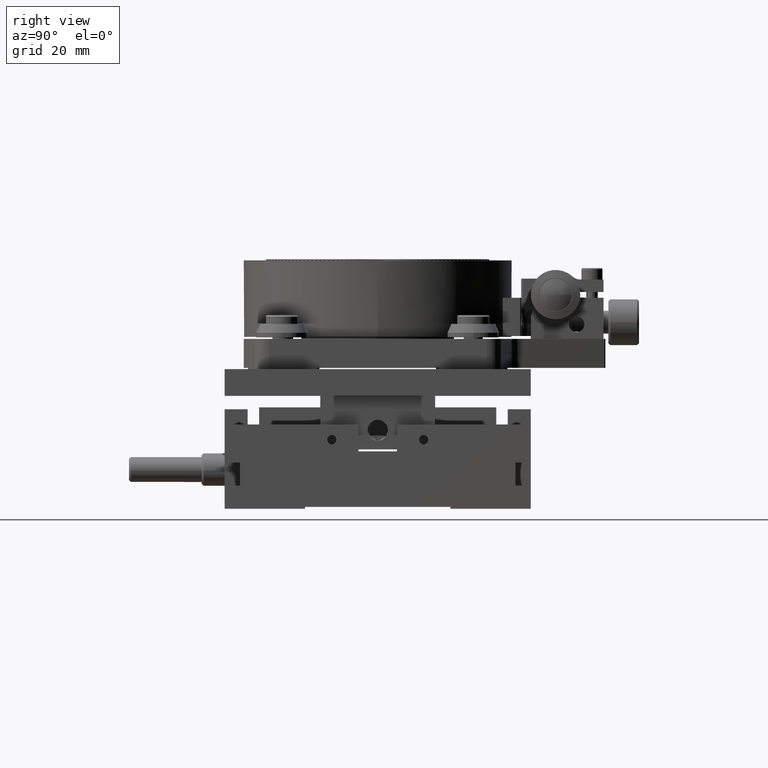
[diagram: clean part render]
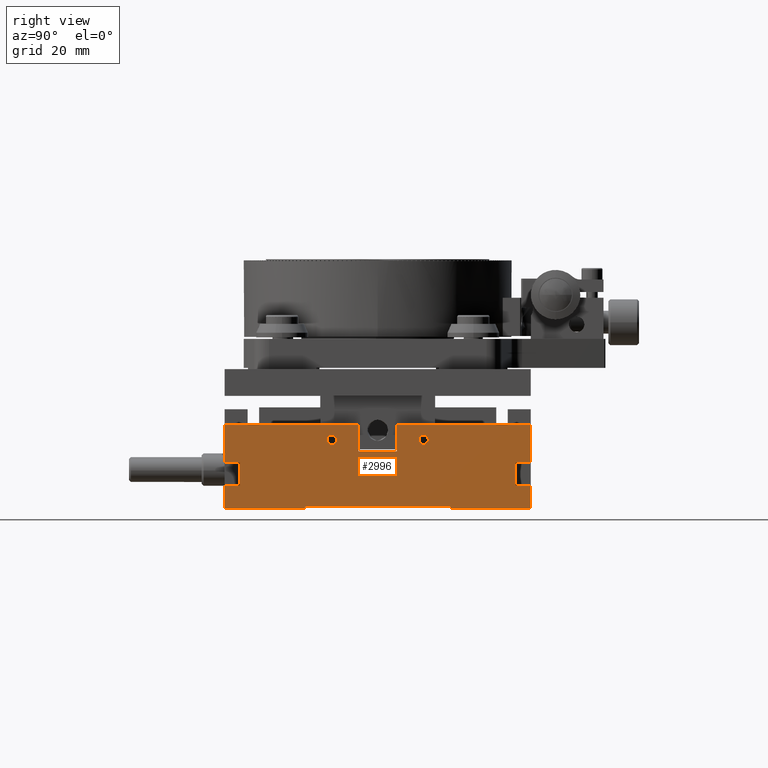
[diagram: same view with one face highlighted and labeled with its STEP entity id]
A machine part, right view. The second image highlights one B-rep face of the part: STEP entity #2996.
In plain terms, the highlighted face is a freeform B-spline surface patch.
Its self-contained STEP definition (entity closure, byte-faithful):
#2996=ADVANCED_FACE('',(#6193,#3608,#3609),#103566,.T.);
#3608=FACE_BOUND('',#9306,.T.);
#3609=FACE_BOUND('',#9307,.T.);
#6193=FACE_OUTER_BOUND('',#9305,.T.);
#9305=EDGE_LOOP('',(#23566,#23567,#23568,#23569,#23570,#23571,#23572,#23573,
#23574,#23575,#23576,#23577,#23578,#23579,#23580,#23581,#23582,#23583,#23584,
#23585));
#9306=EDGE_LOOP('',(#23586,#23587,#23588));
#9307=EDGE_LOOP('',(#23589,#23590,#23591));
#23566=ORIENTED_EDGE('',*,*,#91072,.F.);
#23567=ORIENTED_EDGE('',*,*,#91147,.F.);
#23568=ORIENTED_EDGE('',*,*,#91229,.F.);
#23569=ORIENTED_EDGE('',*,*,#91218,.F.);
#23570=ORIENTED_EDGE('',*,*,#91230,.T.);
#23571=ORIENTED_EDGE('',*,*,#91216,.F.);
#23572=ORIENTED_EDGE('',*,*,#91228,.F.);
#23573=ORIENTED_EDGE('',*,*,#91231,.T.);
#23574=ORIENTED_EDGE('',*,*,#91232,.T.);
#23575=ORIENTED_EDGE('',*,*,#91233,.T.);
#23576=ORIENTED_EDGE('',*,*,#91234,.T.);
#23577=ORIENTED_EDGE('',*,*,#91235,.T.);
#23578=ORIENTED_EDGE('',*,*,#91236,.T.);
#23579=ORIENTED_EDGE('',*,*,#91237,.T.);
#23580=ORIENTED_EDGE('',*,*,#91238,.T.);
#23581=ORIENTED_EDGE('',*,*,#91239,.T.);
#23582=ORIENTED_EDGE('',*,*,#91240,.T.);
#23583=ORIENTED_EDGE('',*,*,#91140,.F.);
#23584=ORIENTED_EDGE('',*,*,#91073,.F.);
#23585=ORIENTED_EDGE('',*,*,#91010,.F.);
#23586=ORIENTED_EDGE('',*,*,#90863,.F.);
#23587=ORIENTED_EDGE('',*,*,#90866,.F.);
#23588=ORIENTED_EDGE('',*,*,#90870,.F.);
#23589=ORIENTED_EDGE('',*,*,#90881,.F.);
#23590=ORIENTED_EDGE('',*,*,#90884,.F.);
#23591=ORIENTED_EDGE('',*,*,#90888,.F.);
#42529=B_SPLINE_CURVE_WITH_KNOTS('',1,(#184313,#184314),.UNSPECIFIED.,.F.,
 .F.,(2,2),(-1.93129408379433,0.),.UNSPECIFIED.);
#42534=B_SPLINE_CURVE_WITH_KNOTS('',1,(#184336,#184337),.UNSPECIFIED.,.F.,
 .F.,(2,2),(-3.86258816758865,-1.93129408379433),.UNSPECIFIED.);
#42543=B_SPLINE_CURVE_WITH_KNOTS('',1,(#184389,#184390),.UNSPECIFIED.,.F.,
 .F.,(2,2),(-3.86258816758865,0.),.UNSPECIFIED.);
#42563=B_SPLINE_CURVE_WITH_KNOTS('',1,(#184483,#184484),.UNSPECIFIED.,.F.,
 .F.,(2,2),(-1.93129408379433,0.),.UNSPECIFIED.);
#42568=B_SPLINE_CURVE_WITH_KNOTS('',1,(#184506,#184507),.UNSPECIFIED.,.F.,
 .F.,(2,2),(-3.86258816758865,-1.93129408379433),.UNSPECIFIED.);
#42577=B_SPLINE_CURVE_WITH_KNOTS('',1,(#184559,#184560),.UNSPECIFIED.,.F.,
 .F.,(2,2),(-3.86258816758865,0.),.UNSPECIFIED.);
#42801=B_SPLINE_CURVE_WITH_KNOTS('',1,(#185604,#185605),.UNSPECIFIED.,.F.,
 .F.,(2,2),(-38.,0.),.UNSPECIFIED.);
#42802=B_SPLINE_CURVE_WITH_KNOTS('',1,(#185606,#185607),.UNSPECIFIED.,.F.,
 .F.,(2,2),(-38.,0.),.UNSPECIFIED.);
#42881=B_SPLINE_CURVE_WITH_KNOTS('',1,(#185992,#185993),.UNSPECIFIED.,.F.,
 .F.,(2,2),(-0.500000000000011,0.),.UNSPECIFIED.);
#42882=B_SPLINE_CURVE_WITH_KNOTS('',1,(#185994,#185995),.UNSPECIFIED.,.F.,
 .F.,(2,2),(-0.500000000000011,0.),.UNSPECIFIED.);
#42884=B_SPLINE_CURVE_WITH_KNOTS('',1,(#185998,#185999),.UNSPECIFIED.,.F.,
 .F.,(2,2),(-0.500000000000011,0.),.UNSPECIFIED.);
#42885=B_SPLINE_CURVE_WITH_KNOTS('',1,(#186000,#186001),.UNSPECIFIED.,.F.,
 .F.,(2,2),(-0.500000000000011,0.),.UNSPECIFIED.);
#43050=B_SPLINE_CURVE_WITH_KNOTS('',1,(#186387,#186388),.UNSPECIFIED.,.F.,
 .F.,(2,2),(-20.9999999999999,0.),.UNSPECIFIED.);
#43051=B_SPLINE_CURVE_WITH_KNOTS('',1,(#186389,#186390),.UNSPECIFIED.,.F.,
 .F.,(2,2),(-20.9999999999999,0.),.UNSPECIFIED.);
#43062=B_SPLINE_CURVE_WITH_KNOTS('',1,(#186431,#186432),.UNSPECIFIED.,.F.,
 .F.,(2,2),(-21.,0.),.UNSPECIFIED.);
#43063=B_SPLINE_CURVE_WITH_KNOTS('',1,(#186433,#186434),.UNSPECIFIED.,.F.,
 .F.,(2,2),(-21.,0.),.UNSPECIFIED.);
#43219=B_SPLINE_CURVE_WITH_KNOTS('',1,(#187012,#187013),.UNSPECIFIED.,.F.,
 .F.,(2,2),(-4.,0.),.UNSPECIFIED.);
#43220=B_SPLINE_CURVE_WITH_KNOTS('',1,(#187014,#187015),.UNSPECIFIED.,.F.,
 .F.,(2,2),(-4.,0.),.UNSPECIFIED.);
#43223=B_SPLINE_CURVE_WITH_KNOTS('',1,(#187020,#187021),.UNSPECIFIED.,.F.,
 .F.,(2,2),(-4.,0.),.UNSPECIFIED.);
#43224=B_SPLINE_CURVE_WITH_KNOTS('',1,(#187022,#187023),.UNSPECIFIED.,.F.,
 .F.,(2,2),(-4.,0.),.UNSPECIFIED.);
#43248=B_SPLINE_CURVE_WITH_KNOTS('',1,(#187070,#187071),.UNSPECIFIED.,.F.,
 .F.,(2,2),(0.,10.),.UNSPECIFIED.);
#43249=B_SPLINE_CURVE_WITH_KNOTS('',1,(#187072,#187073),.UNSPECIFIED.,.F.,
 .F.,(2,2),(0.,10.),.UNSPECIFIED.);
#43253=B_SPLINE_CURVE_WITH_KNOTS('',1,(#187090,#187091),.UNSPECIFIED.,.F.,
 .F.,(2,2),(0.,5.99999999999999),.UNSPECIFIED.);
#43254=B_SPLINE_CURVE_WITH_KNOTS('',1,(#187092,#187093),.UNSPECIFIED.,.F.,
 .F.,(2,2),(0.,5.99999999999999),.UNSPECIFIED.);
#43257=B_SPLINE_CURVE_WITH_KNOTS('',1,(#187098,#187099),.UNSPECIFIED.,.F.,
 .F.,(2,2),(-0.500000000000011,0.),.UNSPECIFIED.);
#43258=B_SPLINE_CURVE_WITH_KNOTS('',1,(#187100,#187101),.UNSPECIFIED.,.F.,
 .F.,(2,2),(-21.,0.),.UNSPECIFIED.);
#43259=B_SPLINE_CURVE_WITH_KNOTS('',1,(#187102,#187103),.UNSPECIFIED.,.F.,
 .F.,(2,2),(0.,5.99999999999999),.UNSPECIFIED.);
#43260=B_SPLINE_CURVE_WITH_KNOTS('',1,(#187104,#187105),.UNSPECIFIED.,.F.,
 .F.,(2,2),(-4.,0.),.UNSPECIFIED.);
#43261=B_SPLINE_CURVE_WITH_KNOTS('',1,(#187106,#187107),.UNSPECIFIED.,.F.,
 .F.,(2,2),(0.,6.00000000000003),.UNSPECIFIED.);
#43262=B_SPLINE_CURVE_WITH_KNOTS('',1,(#187108,#187109),.UNSPECIFIED.,.F.,
 .F.,(2,2),(0.,6.00000000000003),.UNSPECIFIED.);
#43263=B_SPLINE_CURVE_WITH_KNOTS('',1,(#187110,#187111),.UNSPECIFIED.,.F.,
 .F.,(2,2),(-4.,0.),.UNSPECIFIED.);
#43264=B_SPLINE_CURVE_WITH_KNOTS('',1,(#187112,#187113),.UNSPECIFIED.,.F.,
 .F.,(2,2),(0.,10.),.UNSPECIFIED.);
#43265=B_SPLINE_CURVE_WITH_KNOTS('',1,(#187114,#187115),.UNSPECIFIED.,.F.,
 .F.,(2,2),(-35.,0.),.UNSPECIFIED.);
#43266=B_SPLINE_CURVE_WITH_KNOTS('',1,(#187116,#187117),.UNSPECIFIED.,.F.,
 .F.,(2,2),(-35.,0.),.UNSPECIFIED.);
#43267=B_SPLINE_CURVE_WITH_KNOTS('',1,(#187118,#187119),.UNSPECIFIED.,.F.,
 .F.,(2,2),(0.,7.),.UNSPECIFIED.);
#43268=B_SPLINE_CURVE_WITH_KNOTS('',1,(#187120,#187121),.UNSPECIFIED.,.F.,
 .F.,(2,2),(0.,7.),.UNSPECIFIED.);
#43269=B_SPLINE_CURVE_WITH_KNOTS('',1,(#187122,#187123),.UNSPECIFIED.,.F.,
 .F.,(2,2),(0.,10.),.UNSPECIFIED.);
#43270=B_SPLINE_CURVE_WITH_KNOTS('',1,(#187124,#187125),.UNSPECIFIED.,.F.,
 .F.,(2,2),(0.,10.),.UNSPECIFIED.);
#43271=B_SPLINE_CURVE_WITH_KNOTS('',1,(#187126,#187127),.UNSPECIFIED.,.F.,
 .F.,(2,2),(0.,7.),.UNSPECIFIED.);
#43272=B_SPLINE_CURVE_WITH_KNOTS('',1,(#187128,#187129),.UNSPECIFIED.,.F.,
 .F.,(2,2),(0.,7.),.UNSPECIFIED.);
#43273=B_SPLINE_CURVE_WITH_KNOTS('',1,(#187130,#187131),.UNSPECIFIED.,.F.,
 .F.,(2,2),(-34.9999999999999,0.),.UNSPECIFIED.);
#43274=B_SPLINE_CURVE_WITH_KNOTS('',1,(#187132,#187133),.UNSPECIFIED.,.F.,
 .F.,(2,2),(-34.9999999999999,0.),.UNSPECIFIED.);
#43275=B_SPLINE_CURVE_WITH_KNOTS('',1,(#187134,#187135),.UNSPECIFIED.,.F.,
 .F.,(2,2),(0.,10.),.UNSPECIFIED.);
#43276=B_SPLINE_CURVE_WITH_KNOTS('',1,(#187136,#187137),.UNSPECIFIED.,.F.,
 .F.,(2,2),(0.,10.),.UNSPECIFIED.);
#43277=B_SPLINE_CURVE_WITH_KNOTS('',1,(#187138,#187139),.UNSPECIFIED.,.F.,
 .F.,(2,2),(0.,3.9999999999999),.UNSPECIFIED.);
#43278=B_SPLINE_CURVE_WITH_KNOTS('',1,(#187140,#187141),.UNSPECIFIED.,.F.,
 .F.,(2,2),(0.,3.9999999999999),.UNSPECIFIED.);
#43279=B_SPLINE_CURVE_WITH_KNOTS('',1,(#187142,#187143),.UNSPECIFIED.,.F.,
 .F.,(2,2),(0.,6.00000000000002),.UNSPECIFIED.);
#43280=B_SPLINE_CURVE_WITH_KNOTS('',1,(#187144,#187145),.UNSPECIFIED.,.F.,
 .F.,(2,2),(0.,6.00000000000002),.UNSPECIFIED.);
#43281=B_SPLINE_CURVE_WITH_KNOTS('',1,(#187146,#187147),.UNSPECIFIED.,.F.,
 .F.,(2,2),(0.,3.9999999999999),.UNSPECIFIED.);
#43282=B_SPLINE_CURVE_WITH_KNOTS('',1,(#187148,#187149),.UNSPECIFIED.,.F.,
 .F.,(2,2),(0.,3.9999999999999),.UNSPECIFIED.);
#43283=B_SPLINE_CURVE_WITH_KNOTS('',1,(#187150,#187151),.UNSPECIFIED.,.F.,
 .F.,(2,2),(0.,6.),.UNSPECIFIED.);
#43284=B_SPLINE_CURVE_WITH_KNOTS('',1,(#187152,#187153),.UNSPECIFIED.,.F.,
 .F.,(2,2),(0.,6.),.UNSPECIFIED.);
#43285=B_SPLINE_CURVE_WITH_KNOTS('',1,(#187154,#187155),.UNSPECIFIED.,.F.,
 .F.,(2,2),(-20.9999999999999,0.),.UNSPECIFIED.);
#43286=B_SPLINE_CURVE_WITH_KNOTS('',1,(#187156,#187157),.UNSPECIFIED.,.F.,
 .F.,(2,2),(-0.500000000000011,0.),.UNSPECIFIED.);
#43287=B_SPLINE_CURVE_WITH_KNOTS('',1,(#187158,#187159),.UNSPECIFIED.,.F.,
 .F.,(2,2),(-38.,0.),.UNSPECIFIED.);
#43288=B_SPLINE_CURVE_WITH_KNOTS('',1,(#187182,#187183),.UNSPECIFIED.,.F.,
 .F.,(2,2),(0.,3.9999999999999),.UNSPECIFIED.);
#43299=B_SPLINE_CURVE_WITH_KNOTS('',1,(#187204,#187205),.UNSPECIFIED.,.F.,
 .F.,(2,2),(0.,3.9999999999999),.UNSPECIFIED.);
#43303=B_SPLINE_CURVE_WITH_KNOTS('',1,(#187212,#187213),.UNSPECIFIED.,.F.,
 .F.,(2,2),(0.,10.),.UNSPECIFIED.);
#43312=B_SPLINE_CURVE_WITH_KNOTS('',1,(#187230,#187231),.UNSPECIFIED.,.F.,
 .F.,(2,2),(0.,6.),.UNSPECIFIED.);
#43366=B_SPLINE_CURVE_WITH_KNOTS('',1,(#187513,#187514),.UNSPECIFIED.,.F.,
 .F.,(2,2),(0.,7.),.UNSPECIFIED.);
#43373=B_SPLINE_CURVE_WITH_KNOTS('',1,(#187527,#187528),.UNSPECIFIED.,.F.,
 .F.,(2,2),(0.,7.),.UNSPECIFIED.);
#43381=B_SPLINE_CURVE_WITH_KNOTS('',1,(#187543,#187544),.UNSPECIFIED.,.F.,
 .F.,(2,2),(0.,10.),.UNSPECIFIED.);
#43400=B_SPLINE_CURVE_WITH_KNOTS('',1,(#187593,#187594),.UNSPECIFIED.,.F.,
 .F.,(2,2),(-34.9999999999999,0.),.UNSPECIFIED.);
#43402=B_SPLINE_CURVE_WITH_KNOTS('',1,(#187637,#187638),.UNSPECIFIED.,.F.,
 .F.,(2,2),(-35.,0.),.UNSPECIFIED.);
#44182=B_SPLINE_CURVE_WITH_KNOTS('',1,(#190474,#190475),.UNSPECIFIED.,.F.,
 .F.,(2,2),(0.,6.00000000000002),.UNSPECIFIED.);
#44194=B_SPLINE_CURVE_WITH_KNOTS('',1,(#190498,#190499),.UNSPECIFIED.,.F.,
 .F.,(2,2),(0.,6.00000000000003),.UNSPECIFIED.);
#58430=PCURVE('',#101427,#74023);
#58433=PCURVE('',#101428,#74026);
#58439=PCURVE('',#101428,#74032);
#58452=PCURVE('',#101431,#74045);
#58455=PCURVE('',#101432,#74048);
#58461=PCURVE('',#101432,#74054);
#58601=PCURVE('',#103512,#74194);
#58671=PCURVE('',#103518,#74264);
#58673=PCURVE('',#103519,#74266);
#58785=PCURVE('',#103535,#74378);
#58794=PCURVE('',#103536,#74387);
#58945=PCURVE('',#103560,#74538);
#58947=PCURVE('',#103561,#74540);
#58962=PCURVE('',#103564,#74555);
#58968=PCURVE('',#103565,#74561);
#58971=PCURVE('',#103566,#74564);
#58972=PCURVE('',#103566,#74565);
#58973=PCURVE('',#103566,#74566);
#58974=PCURVE('',#103566,#74567);
#58975=PCURVE('',#103566,#74568);
#58976=PCURVE('',#103566,#74569);
#58977=PCURVE('',#103566,#74570);
#58978=PCURVE('',#103566,#74571);
#58979=PCURVE('',#103566,#74572);
#58980=PCURVE('',#103566,#74573);
#58981=PCURVE('',#103566,#74574);
#58982=PCURVE('',#103566,#74575);
#58983=PCURVE('',#103566,#74576);
#58984=PCURVE('',#103566,#74577);
#58985=PCURVE('',#103566,#74578);
#58986=PCURVE('',#103566,#74579);
#58987=PCURVE('',#103566,#74580);
#58988=PCURVE('',#103566,#74581);
#58989=PCURVE('',#103566,#74582);
#58990=PCURVE('',#103566,#74583);
#58991=PCURVE('',#103566,#74584);
#58992=PCURVE('',#103566,#74585);
#58993=PCURVE('',#103566,#74586);
#58994=PCURVE('',#103566,#74587);
#58995=PCURVE('',#103566,#74588);
#58996=PCURVE('',#103566,#74589);
#58997=PCURVE('',#103567,#74590);
#59003=PCURVE('',#103568,#74596);
#59006=PCURVE('',#103569,#74599);
#59012=PCURVE('',#103570,#74605);
#59068=PCURVE('',#103588,#74661);
#59072=PCURVE('',#103589,#74665);
#59077=PCURVE('',#103590,#74670);
#59092=PCURVE('',#103591,#74685);
#59098=PCURVE('',#103592,#74691);
#59803=PCURVE('',#103634,#75396);
#59814=PCURVE('',#103635,#75407);
#74023=DEFINITIONAL_REPRESENTATION('',(#42529),#197026);
#74026=DEFINITIONAL_REPRESENTATION('',(#42534),#197026);
#74032=DEFINITIONAL_REPRESENTATION('',(#42543),#197026);
#74045=DEFINITIONAL_REPRESENTATION('',(#42563),#197026);
#74048=DEFINITIONAL_REPRESENTATION('',(#42568),#197026);
#74054=DEFINITIONAL_REPRESENTATION('',(#42577),#197026);
#74194=DEFINITIONAL_REPRESENTATION('',(#42802),#197026);
#74264=DEFINITIONAL_REPRESENTATION('',(#42882),#197026);
#74266=DEFINITIONAL_REPRESENTATION('',(#42885),#197026);
#74378=DEFINITIONAL_REPRESENTATION('',(#43051),#197026);
#74387=DEFINITIONAL_REPRESENTATION('',(#43063),#197026);
#74538=DEFINITIONAL_REPRESENTATION('',(#43220),#197026);
#74540=DEFINITIONAL_REPRESENTATION('',(#43224),#197026);
#74555=DEFINITIONAL_REPRESENTATION('',(#43249),#197026);
#74561=DEFINITIONAL_REPRESENTATION('',(#43254),#197026);
#74564=DEFINITIONAL_REPRESENTATION('',(#43257),#197026);
#74565=DEFINITIONAL_REPRESENTATION('',(#43258),#197026);
#74566=DEFINITIONAL_REPRESENTATION('',(#43259),#197026);
#74567=DEFINITIONAL_REPRESENTATION('',(#43260),#197026);
#74568=DEFINITIONAL_REPRESENTATION('',(#43262),#197026);
#74569=DEFINITIONAL_REPRESENTATION('',(#43263),#197026);
#74570=DEFINITIONAL_REPRESENTATION('',(#43264),#197026);
#74571=DEFINITIONAL_REPRESENTATION('',(#43266),#197026);
#74572=DEFINITIONAL_REPRESENTATION('',(#43268),#197026);
#74573=DEFINITIONAL_REPRESENTATION('',(#43270),#197026);
#74574=DEFINITIONAL_REPRESENTATION('',(#43272),#197026);
#74575=DEFINITIONAL_REPRESENTATION('',(#43274),#197026);
#74576=DEFINITIONAL_REPRESENTATION('',(#43276),#197026);
#74577=DEFINITIONAL_REPRESENTATION('',(#43278),#197026);
#74578=DEFINITIONAL_REPRESENTATION('',(#43280),#197026);
#74579=DEFINITIONAL_REPRESENTATION('',(#43282),#197026);
#74580=DEFINITIONAL_REPRESENTATION('',(#43284),#197026);
#74581=DEFINITIONAL_REPRESENTATION('',(#43285),#197026);
#74582=DEFINITIONAL_REPRESENTATION('',(#43286),#197026);
#74583=DEFINITIONAL_REPRESENTATION('',(#43287),#197026);
#74584=DEFINITIONAL_REPRESENTATION('',(#94990),#197026);
#74585=DEFINITIONAL_REPRESENTATION('',(#94991),#197026);
#74586=DEFINITIONAL_REPRESENTATION('',(#94992),#197026);
#74587=DEFINITIONAL_REPRESENTATION('',(#94993),#197026);
#74588=DEFINITIONAL_REPRESENTATION('',(#94994),#197026);
#74589=DEFINITIONAL_REPRESENTATION('',(#94995),#197026);
#74590=DEFINITIONAL_REPRESENTATION('',(#43288),#197026);
#74596=DEFINITIONAL_REPRESENTATION('',(#43299),#197026);
#74599=DEFINITIONAL_REPRESENTATION('',(#43303),#197026);
#74605=DEFINITIONAL_REPRESENTATION('',(#43312),#197026);
#74661=DEFINITIONAL_REPRESENTATION('',(#43366),#197026);
#74665=DEFINITIONAL_REPRESENTATION('',(#43373),#197026);
#74670=DEFINITIONAL_REPRESENTATION('',(#43381),#197026);
#74685=DEFINITIONAL_REPRESENTATION('',(#43400),#197026);
#74691=DEFINITIONAL_REPRESENTATION('',(#43402),#197026);
#75396=DEFINITIONAL_REPRESENTATION('',(#44182),#197026);
#75407=DEFINITIONAL_REPRESENTATION('',(#44194),#197026);
#83005=SURFACE_CURVE('',#94810,(#58430,#58991),.PCURVE_S1.);
#83008=SURFACE_CURVE('',#94811,(#58433,#58992),.PCURVE_S1.);
#83012=SURFACE_CURVE('',#94812,(#58439,#58993),.PCURVE_S1.);
#83023=SURFACE_CURVE('',#94816,(#58452,#58994),.PCURVE_S1.);
#83026=SURFACE_CURVE('',#94817,(#58455,#58995),.PCURVE_S1.);
#83030=SURFACE_CURVE('',#94818,(#58461,#58996),.PCURVE_S1.);
#83152=SURFACE_CURVE('',#42801,(#58601,#58990),.PCURVE_S1.);
#83214=SURFACE_CURVE('',#42881,(#58671,#58971),.PCURVE_S1.);
#83215=SURFACE_CURVE('',#42884,(#58673,#58989),.PCURVE_S1.);
#83282=SURFACE_CURVE('',#43050,(#58785,#58988),.PCURVE_S1.);
#83289=SURFACE_CURVE('',#43062,(#58794,#58972),.PCURVE_S1.);
#83358=SURFACE_CURVE('',#43219,(#58945,#58976),.PCURVE_S1.);
#83360=SURFACE_CURVE('',#43223,(#58947,#58974),.PCURVE_S1.);
#83370=SURFACE_CURVE('',#43248,(#58962,#58977),.PCURVE_S1.);
#83371=SURFACE_CURVE('',#43253,(#58968,#58973),.PCURVE_S1.);
#83372=SURFACE_CURVE('',#43261,(#58975,#59814),.PCURVE_S1.);
#83373=SURFACE_CURVE('',#43265,(#58978,#59098),.PCURVE_S1.);
#83374=SURFACE_CURVE('',#43267,(#58979,#59068),.PCURVE_S1.);
#83375=SURFACE_CURVE('',#43269,(#58980,#59077),.PCURVE_S1.);
#83376=SURFACE_CURVE('',#43271,(#58981,#59072),.PCURVE_S1.);
#83377=SURFACE_CURVE('',#43273,(#58982,#59092),.PCURVE_S1.);
#83378=SURFACE_CURVE('',#43275,(#58983,#59006),.PCURVE_S1.);
#83379=SURFACE_CURVE('',#43277,(#58984,#58997),.PCURVE_S1.);
#83380=SURFACE_CURVE('',#43279,(#58985,#59803),.PCURVE_S1.);
#83381=SURFACE_CURVE('',#43281,(#58986,#59003),.PCURVE_S1.);
#83382=SURFACE_CURVE('',#43283,(#58987,#59012),.PCURVE_S1.);
#90863=EDGE_CURVE('',#100132,#100131,#83005,.T.);
#90866=EDGE_CURVE('',#100130,#100132,#83008,.T.);
#90870=EDGE_CURVE('',#100131,#100130,#83012,.T.);
#90881=EDGE_CURVE('',#100144,#100143,#83023,.T.);
#90884=EDGE_CURVE('',#100142,#100144,#83026,.T.);
#90888=EDGE_CURVE('',#100143,#100142,#83030,.T.);
#91010=EDGE_CURVE('',#100254,#100255,#83152,.T.);
#91072=EDGE_CURVE('',#100307,#100254,#83214,.T.);
#91073=EDGE_CURVE('',#100255,#100308,#83215,.T.);
#91140=EDGE_CURVE('',#100308,#100353,#83282,.T.);
#91147=EDGE_CURVE('',#100358,#100307,#83289,.T.);
#91216=EDGE_CURVE('',#100394,#100392,#83358,.T.);
#91218=EDGE_CURVE('',#100395,#100397,#83360,.T.);
#91228=EDGE_CURVE('',#100401,#100394,#83370,.T.);
#91229=EDGE_CURVE('',#100397,#100358,#83371,.T.);
#91230=EDGE_CURVE('',#100395,#100392,#83372,.T.);
#91231=EDGE_CURVE('',#100401,#100402,#83373,.T.);
#91232=EDGE_CURVE('',#100402,#100403,#83374,.T.);
#91233=EDGE_CURVE('',#100403,#100404,#83375,.T.);
#91234=EDGE_CURVE('',#100404,#100405,#83376,.T.);
#91235=EDGE_CURVE('',#100405,#100406,#83377,.T.);
#91236=EDGE_CURVE('',#100406,#100407,#83378,.T.);
#91237=EDGE_CURVE('',#100407,#100408,#83379,.T.);
#91238=EDGE_CURVE('',#100408,#100409,#83380,.T.);
#91239=EDGE_CURVE('',#100409,#100410,#83381,.T.);
#91240=EDGE_CURVE('',#100410,#100353,#83382,.T.);
#94810=(
BOUNDED_CURVE()
B_SPLINE_CURVE(2,(#184310,#184311,#184312),.UNSPECIFIED.,.F.,.F.)
B_SPLINE_CURVE_WITH_KNOTS((3,3),(-1.93129408379433,0.),.UNSPECIFIED.)
CURVE()
GEOMETRIC_REPRESENTATION_ITEM()
RATIONAL_B_SPLINE_CURVE((1.,0.707106781186541,1.))
REPRESENTATION_ITEM('')
);
#94811=(
BOUNDED_CURVE()
B_SPLINE_CURVE(2,(#184333,#184334,#184335),.UNSPECIFIED.,.F.,.F.)
B_SPLINE_CURVE_WITH_KNOTS((3,3),(-3.86258816758865,-1.93129408379433),
 .UNSPECIFIED.)
CURVE()
GEOMETRIC_REPRESENTATION_ITEM()
RATIONAL_B_SPLINE_CURVE((1.,0.707106781186543,1.))
REPRESENTATION_ITEM('')
);
#94812=(
BOUNDED_CURVE()
B_SPLINE_CURVE(2,(#184384,#184385,#184386,#184387,#184388),
 .UNSPECIFIED.,.F.,.F.)
B_SPLINE_CURVE_WITH_KNOTS((3,2,3),(-3.86258816758865,-1.93129408379433,
0.),.UNSPECIFIED.)
CURVE()
GEOMETRIC_REPRESENTATION_ITEM()
RATIONAL_B_SPLINE_CURVE((1.,0.707106781186552,1.,0.707106781186552,1.))
REPRESENTATION_ITEM('')
);
#94816=(
BOUNDED_CURVE()
B_SPLINE_CURVE(2,(#184480,#184481,#184482),.UNSPECIFIED.,.F.,.F.)
B_SPLINE_CURVE_WITH_KNOTS((3,3),(-1.93129408379433,0.),.UNSPECIFIED.)
CURVE()
GEOMETRIC_REPRESENTATION_ITEM()
RATIONAL_B_SPLINE_CURVE((1.,0.707106781186548,1.))
REPRESENTATION_ITEM('')
);
#94817=(
BOUNDED_CURVE()
B_SPLINE_CURVE(2,(#184503,#184504,#184505),.UNSPECIFIED.,.F.,.F.)
B_SPLINE_CURVE_WITH_KNOTS((3,3),(-3.86258816758865,-1.93129408379433),
 .UNSPECIFIED.)
CURVE()
GEOMETRIC_REPRESENTATION_ITEM()
RATIONAL_B_SPLINE_CURVE((1.,0.707106781186548,1.))
REPRESENTATION_ITEM('')
);
#94818=(
BOUNDED_CURVE()
B_SPLINE_CURVE(2,(#184554,#184555,#184556,#184557,#184558),
 .UNSPECIFIED.,.F.,.F.)
B_SPLINE_CURVE_WITH_KNOTS((3,2,3),(-3.86258816758865,-1.93129408379433,
0.),.UNSPECIFIED.)
CURVE()
GEOMETRIC_REPRESENTATION_ITEM()
RATIONAL_B_SPLINE_CURVE((1.,0.707106781186548,1.,0.707106781186548,1.))
REPRESENTATION_ITEM('')
);
#94990=(
BOUNDED_CURVE()
B_SPLINE_CURVE(2,(#187160,#187161,#187162),.UNSPECIFIED.,.F.,.F.)
B_SPLINE_CURVE_WITH_KNOTS((3,3),(-1.93129408379433,0.),.UNSPECIFIED.)
CURVE()
GEOMETRIC_REPRESENTATION_ITEM()
RATIONAL_B_SPLINE_CURVE((1.,0.707106781186548,1.))
REPRESENTATION_ITEM('')
);
#94991=(
BOUNDED_CURVE()
B_SPLINE_CURVE(2,(#187163,#187164,#187165),.UNSPECIFIED.,.F.,.F.)
B_SPLINE_CURVE_WITH_KNOTS((3,3),(-3.86258816758865,-1.93129408379433),
 .UNSPECIFIED.)
CURVE()
GEOMETRIC_REPRESENTATION_ITEM()
RATIONAL_B_SPLINE_CURVE((1.,0.707106781186548,1.))
REPRESENTATION_ITEM('')
);
#94992=(
BOUNDED_CURVE()
B_SPLINE_CURVE(2,(#187166,#187167,#187168,#187169,#187170),
 .UNSPECIFIED.,.F.,.F.)
B_SPLINE_CURVE_WITH_KNOTS((3,2,3),(-3.86258816758865,-1.93129408379433,
0.),.UNSPECIFIED.)
CURVE()
GEOMETRIC_REPRESENTATION_ITEM()
RATIONAL_B_SPLINE_CURVE((1.,0.707106781186548,1.,0.707106781186548,1.))
REPRESENTATION_ITEM('')
);
#94993=(
BOUNDED_CURVE()
B_SPLINE_CURVE(2,(#187171,#187172,#187173),.UNSPECIFIED.,.F.,.F.)
B_SPLINE_CURVE_WITH_KNOTS((3,3),(-1.93129408379433,0.),.UNSPECIFIED.)
CURVE()
GEOMETRIC_REPRESENTATION_ITEM()
RATIONAL_B_SPLINE_CURVE((1.,0.707106781186548,1.))
REPRESENTATION_ITEM('')
);
#94994=(
BOUNDED_CURVE()
B_SPLINE_CURVE(2,(#187174,#187175,#187176),.UNSPECIFIED.,.F.,.F.)
B_SPLINE_CURVE_WITH_KNOTS((3,3),(-3.86258816758865,-1.93129408379433),
 .UNSPECIFIED.)
CURVE()
GEOMETRIC_REPRESENTATION_ITEM()
RATIONAL_B_SPLINE_CURVE((1.,0.707106781186548,1.))
REPRESENTATION_ITEM('')
);
#94995=(
BOUNDED_CURVE()
B_SPLINE_CURVE(2,(#187177,#187178,#187179,#187180,#187181),
 .UNSPECIFIED.,.F.,.F.)
B_SPLINE_CURVE_WITH_KNOTS((3,2,3),(-3.86258816758865,-1.93129408379433,
0.),.UNSPECIFIED.)
CURVE()
GEOMETRIC_REPRESENTATION_ITEM()
RATIONAL_B_SPLINE_CURVE((1.,0.707106781186548,1.,0.707106781186548,1.))
REPRESENTATION_ITEM('')
);
#100130=VERTEX_POINT('',#181994);
#100131=VERTEX_POINT('',#181995);
#100132=VERTEX_POINT('',#181996);
#100142=VERTEX_POINT('',#182006);
#100143=VERTEX_POINT('',#182007);
#100144=VERTEX_POINT('',#182008);
#100254=VERTEX_POINT('',#182118);
#100255=VERTEX_POINT('',#182119);
#100307=VERTEX_POINT('',#182171);
#100308=VERTEX_POINT('',#182172);
#100353=VERTEX_POINT('',#182217);
#100358=VERTEX_POINT('',#182222);
#100392=VERTEX_POINT('',#182256);
#100394=VERTEX_POINT('',#182258);
#100395=VERTEX_POINT('',#182259);
#100397=VERTEX_POINT('',#182261);
#100401=VERTEX_POINT('',#182265);
#100402=VERTEX_POINT('',#182266);
#100403=VERTEX_POINT('',#182267);
#100404=VERTEX_POINT('',#182268);
#100405=VERTEX_POINT('',#182269);
#100406=VERTEX_POINT('',#182270);
#100407=VERTEX_POINT('',#182271);
#100408=VERTEX_POINT('',#182272);
#100409=VERTEX_POINT('',#182273);
#100410=VERTEX_POINT('',#182274);
#101427=(
BOUNDED_SURFACE()
B_SPLINE_SURFACE(1,2,((#179430,#179431,#179432,#179433,#179434,#179435,
#179436,#179437,#179438),(#179439,#179440,#179441,#179442,#179443,#179444,
#179445,#179446,#179447)),.UNSPECIFIED.,.F.,.F.,.F.)
B_SPLINE_SURFACE_WITH_KNOTS((2,2),(3,2,2,2,3),(0.,3.40888660177438),(0.,
1.5707963267949,3.14159265358979,4.71238898038469,6.28318530717959),
 .UNSPECIFIED.)
GEOMETRIC_REPRESENTATION_ITEM()
RATIONAL_B_SPLINE_SURFACE(((1.,0.707106781186548,1.,0.707106781186548,1.,
0.707106781186548,1.,0.707106781186548,1.),(1.,0.707106781186548,1.,0.707106781186548,
1.,0.707106781186548,1.,0.707106781186548,1.)))
REPRESENTATION_ITEM('')
SURFACE()
);
#101428=(
BOUNDED_SURFACE()
B_SPLINE_SURFACE(1,2,((#179448,#179449,#179450,#179451,#179452,#179453,
#179454,#179455,#179456),(#179457,#179458,#179459,#179460,#179461,#179462,
#179463,#179464,#179465)),.UNSPECIFIED.,.F.,.F.,.F.)
B_SPLINE_SURFACE_WITH_KNOTS((2,2),(3,2,2,2,3),(0.,3.40888660177438),(0.,
1.5707963267949,3.14159265358979,4.71238898038469,6.28318530717959),
 .UNSPECIFIED.)
GEOMETRIC_REPRESENTATION_ITEM()
RATIONAL_B_SPLINE_SURFACE(((1.,0.707106781186548,1.,0.707106781186548,1.,
0.707106781186548,1.,0.707106781186548,1.),(1.,0.707106781186548,1.,0.707106781186548,
1.,0.707106781186548,1.,0.707106781186548,1.)))
REPRESENTATION_ITEM('')
SURFACE()
);
#101431=(
BOUNDED_SURFACE()
B_SPLINE_SURFACE(1,2,((#179502,#179503,#179504,#179505,#179506,#179507,
#179508,#179509,#179510),(#179511,#179512,#179513,#179514,#179515,#179516,
#179517,#179518,#179519)),.UNSPECIFIED.,.F.,.F.,.F.)
B_SPLINE_SURFACE_WITH_KNOTS((2,2),(3,2,2,2,3),(0.,3.40888660177438),(0.,
1.5707963267949,3.14159265358979,4.71238898038469,6.28318530717959),
 .UNSPECIFIED.)
GEOMETRIC_REPRESENTATION_ITEM()
RATIONAL_B_SPLINE_SURFACE(((1.,0.707106781186548,1.,0.707106781186548,1.,
0.707106781186548,1.,0.707106781186548,1.),(1.,0.707106781186548,1.,0.707106781186548,
1.,0.707106781186548,1.,0.707106781186548,1.)))
REPRESENTATION_ITEM('')
SURFACE()
);
#101432=(
BOUNDED_SURFACE()
B_SPLINE_SURFACE(1,2,((#179520,#179521,#179522,#179523,#179524,#179525,
#179526,#179527,#179528),(#179529,#179530,#179531,#179532,#179533,#179534,
#179535,#179536,#179537)),.UNSPECIFIED.,.F.,.F.,.F.)
B_SPLINE_SURFACE_WITH_KNOTS((2,2),(3,2,2,2,3),(0.,3.40888660177438),(0.,
1.5707963267949,3.14159265358979,4.71238898038469,6.28318530717959),
 .UNSPECIFIED.)
GEOMETRIC_REPRESENTATION_ITEM()
RATIONAL_B_SPLINE_SURFACE(((1.,0.707106781186548,1.,0.707106781186548,1.,
0.707106781186548,1.,0.707106781186548,1.),(1.,0.707106781186548,1.,0.707106781186548,
1.,0.707106781186548,1.,0.707106781186548,1.)))
REPRESENTATION_ITEM('')
SURFACE()
);
#103512=B_SPLINE_SURFACE_WITH_KNOTS('',1,1,((#179962,#179963),(#179964,
#179965)),.UNSPECIFIED.,.F.,.F.,.F.,(2,2),(2,2),(-48.818113207547,47.4218867924529),
(-71.7615094339623,72.4784905660378),.UNSPECIFIED.);
#103518=B_SPLINE_SURFACE_WITH_KNOTS('',1,1,((#179986,#179987),(#179988,
#179989)),.UNSPECIFIED.,.F.,.F.,.F.,(2,2),(2,2),(-1.91999999999999,19.92),
(-0.770000000000009,1.27000000000002),.UNSPECIFIED.);
#103519=B_SPLINE_SURFACE_WITH_KNOTS('',1,1,((#179990,#179991),(#179992,
#179993)),.UNSPECIFIED.,.F.,.F.,.F.,(2,2),(2,2),(-19.92,1.91999999999999),
(-1.27000000000002,0.770000000000012),.UNSPECIFIED.);
#103535=B_SPLINE_SURFACE_WITH_KNOTS('',1,1,((#180108,#180109),(#180110,
#180111)),.UNSPECIFIED.,.F.,.F.,.F.,(2,2),(2,2),(-42.2199999999999,-16.78),
(39.6355555555556,61.4755555555556),.UNSPECIFIED.);
#103536=B_SPLINE_SURFACE_WITH_KNOTS('',1,1,((#180112,#180113),(#180114,
#180115)),.UNSPECIFIED.,.F.,.F.,.F.,(2,2),(2,2),(16.78,42.22),(39.6355555555556,
61.4755555555556),.UNSPECIFIED.);
#103560=B_SPLINE_SURFACE_WITH_KNOTS('',1,1,((#180298,#180299),(#180300,
#180301)),.UNSPECIFIED.,.F.,.F.,.F.,(2,2),(2,2),(-4.52000000000004,0.520000000000005),
(-4.12000000000001,44.1200000000001),.UNSPECIFIED.);
#103561=B_SPLINE_SURFACE_WITH_KNOTS('',1,1,((#180302,#180303),(#180304,
#180305)),.UNSPECIFIED.,.F.,.F.,.F.,(2,2),(2,2),(-4.52,0.520000000000035),
(-4.12,44.1200000000001),.UNSPECIFIED.);
#103564=B_SPLINE_SURFACE_WITH_KNOTS('',1,1,((#180314,#180315),(#180316,
#180317)),.UNSPECIFIED.,.F.,.F.,.F.,(2,2),(2,2),(-11.12,1.12000000000002),
(-44.1200000000001,4.12),.UNSPECIFIED.);
#103565=B_SPLINE_SURFACE_WITH_KNOTS('',1,1,((#180318,#180319),(#180320,
#180321)),.UNSPECIFIED.,.F.,.F.,.F.,(2,2),(2,2),(-22.72,-15.28),(-44.1200000000001,
4.12),.UNSPECIFIED.);
#103566=B_SPLINE_SURFACE_WITH_KNOTS('',1,1,((#180322,#180323),(#180324,
#180325)),.UNSPECIFIED.,.F.,.F.,.F.,(2,2),(2,2),(-2.32,24.32),(-8.11999999999998,
88.1199999999999),.UNSPECIFIED.);
#103567=B_SPLINE_SURFACE_WITH_KNOTS('',1,1,((#180326,#180327),(#180328,
#180329)),.UNSPECIFIED.,.F.,.F.,.F.,(2,2),(2,2),(-0.519999999999985,4.5199999999999),
(-17.72,1.72),.UNSPECIFIED.);
#103568=B_SPLINE_SURFACE_WITH_KNOTS('',1,1,((#180330,#180331),(#180332,
#180333)),.UNSPECIFIED.,.F.,.F.,.F.,(2,2),(2,2),(-0.519999999999997,4.51999999999989),
(-17.72,1.71999999999999),.UNSPECIFIED.);
#103569=B_SPLINE_SURFACE_WITH_KNOTS('',1,1,((#180334,#180335),(#180336,
#180337)),.UNSPECIFIED.,.F.,.F.,.F.,(2,2),(2,2),(-1.12,11.12),(-1.72,17.72),
 .UNSPECIFIED.);
#103570=B_SPLINE_SURFACE_WITH_KNOTS('',1,1,((#180338,#180339),(#180340,
#180341)),.UNSPECIFIED.,.F.,.F.,.F.,(2,2),(2,2),(15.28,22.72),(-1.72,17.72),
 .UNSPECIFIED.);
#103588=B_SPLINE_SURFACE_WITH_KNOTS('',1,1,((#180410,#180411),(#180412,
#180413)),.UNSPECIFIED.,.F.,.F.,.F.,(2,2),(2,2),(-7.82,0.819999999999994),
(-7.82,0.820000000000004),.UNSPECIFIED.);
#103589=B_SPLINE_SURFACE_WITH_KNOTS('',1,1,((#180414,#180415),(#180416,
#180417)),.UNSPECIFIED.,.F.,.F.,.F.,(2,2),(2,2),(112.18,120.82),(-0.820000000000061,
7.81999999999994),.UNSPECIFIED.);
#103590=B_SPLINE_SURFACE_WITH_KNOTS('',1,1,((#180418,#180419),(#180420,
#180421)),.UNSPECIFIED.,.F.,.F.,.F.,(2,2),(2,2),(52.18,60.82),(-6.12000000000004,
6.11999999999996),.UNSPECIFIED.);
#103591=B_SPLINE_SURFACE_WITH_KNOTS('',1,1,((#180422,#180423),(#180424,
#180425)),.UNSPECIFIED.,.F.,.F.,.F.,(2,2),(2,2),(1.13555555555557,64.9755555555556),
(-43.6199999999999,-1.38000000000002),.UNSPECIFIED.);
#103592=B_SPLINE_SURFACE_WITH_KNOTS('',1,1,((#180426,#180427),(#180428,
#180429)),.UNSPECIFIED.,.F.,.F.,.F.,(2,2),(2,2),(1.1355555555555,64.9755555555556),
(1.37999999999995,43.62),.UNSPECIFIED.);
#103634=B_SPLINE_SURFACE_WITH_KNOTS('',1,1,((#181674,#181675),(#181676,
#181677)),.UNSPECIFIED.,.F.,.F.,.F.,(2,2),(2,2),(-2.32000000000001,24.32),
(-2.32,24.32),.UNSPECIFIED.);
#103635=B_SPLINE_SURFACE_WITH_KNOTS('',1,1,((#181678,#181679),(#181680,
#181681)),.UNSPECIFIED.,.F.,.F.,.F.,(2,2),(2,2),(-23.77,2.27000000000001),
(-10.72,44.7200000000001),.UNSPECIFIED.);
#179430=CARTESIAN_POINT('',(116.975187281707,-47.8233225615781,17.5));
#179431=CARTESIAN_POINT('',(116.975187281707,-47.8233225615781,18.7295));
#179432=CARTESIAN_POINT('',(116.975187281707,-49.0528225615781,18.7295));
#179433=CARTESIAN_POINT('',(116.975187281707,-50.2823225615781,18.7295));
#179434=CARTESIAN_POINT('',(116.975187281707,-50.2823225615781,17.5));
#179435=CARTESIAN_POINT('',(116.975187281707,-50.2823225615781,16.2705));
#179436=CARTESIAN_POINT('',(116.975187281707,-49.0528225615781,16.2705));
#179437=CARTESIAN_POINT('',(116.975187281707,-47.8233225615781,16.2705));
#179438=CARTESIAN_POINT('',(116.975187281707,-47.8233225615781,17.5));
#179439=CARTESIAN_POINT('',(120.384073883481,-47.8233225615781,17.5));
#179440=CARTESIAN_POINT('',(120.384073883481,-47.8233225615781,18.7295));
#179441=CARTESIAN_POINT('',(120.384073883481,-49.0528225615781,18.7295));
#179442=CARTESIAN_POINT('',(120.384073883481,-50.2823225615781,18.7295));
#179443=CARTESIAN_POINT('',(120.384073883481,-50.2823225615781,17.5));
#179444=CARTESIAN_POINT('',(120.384073883481,-50.2823225615781,16.2705));
#179445=CARTESIAN_POINT('',(120.384073883481,-49.0528225615781,16.2705));
#179446=CARTESIAN_POINT('',(120.384073883481,-47.8233225615781,16.2705));
#179447=CARTESIAN_POINT('',(120.384073883481,-47.8233225615781,17.5));
#179448=CARTESIAN_POINT('',(116.975187281707,-47.8233225615781,17.5));
#179449=CARTESIAN_POINT('',(116.975187281707,-47.8233225615781,18.7295));
#179450=CARTESIAN_POINT('',(116.975187281707,-49.0528225615781,18.7295));
#179451=CARTESIAN_POINT('',(116.975187281707,-50.2823225615781,18.7295));
#179452=CARTESIAN_POINT('',(116.975187281707,-50.2823225615781,17.5));
#179453=CARTESIAN_POINT('',(116.975187281707,-50.2823225615781,16.2705));
#179454=CARTESIAN_POINT('',(116.975187281707,-49.0528225615781,16.2705));
#179455=CARTESIAN_POINT('',(116.975187281707,-47.8233225615781,16.2705));
#179456=CARTESIAN_POINT('',(116.975187281707,-47.8233225615781,17.5));
#179457=CARTESIAN_POINT('',(120.384073883481,-47.8233225615781,17.5));
#179458=CARTESIAN_POINT('',(120.384073883481,-47.8233225615781,18.7295));
#179459=CARTESIAN_POINT('',(120.384073883481,-49.0528225615781,18.7295));
#179460=CARTESIAN_POINT('',(120.384073883481,-50.2823225615781,18.7295));
#179461=CARTESIAN_POINT('',(120.384073883481,-50.2823225615781,17.5));
#179462=CARTESIAN_POINT('',(120.384073883481,-50.2823225615781,16.2705));
#179463=CARTESIAN_POINT('',(120.384073883481,-49.0528225615781,16.2705));
#179464=CARTESIAN_POINT('',(120.384073883481,-47.8233225615781,16.2705));
#179465=CARTESIAN_POINT('',(120.384073883481,-47.8233225615781,17.5));
#179502=CARTESIAN_POINT('',(116.975187281707,-71.8233225615781,17.5));
#179503=CARTESIAN_POINT('',(116.975187281707,-71.8233225615781,18.7295));
#179504=CARTESIAN_POINT('',(116.975187281707,-73.0528225615781,18.7295));
#179505=CARTESIAN_POINT('',(116.975187281707,-74.2823225615781,18.7295));
#179506=CARTESIAN_POINT('',(116.975187281707,-74.2823225615781,17.5));
#179507=CARTESIAN_POINT('',(116.975187281707,-74.2823225615781,16.2705));
#179508=CARTESIAN_POINT('',(116.975187281707,-73.0528225615781,16.2705));
#179509=CARTESIAN_POINT('',(116.975187281707,-71.8233225615781,16.2705));
#179510=CARTESIAN_POINT('',(116.975187281707,-71.8233225615781,17.5));
#179511=CARTESIAN_POINT('',(120.384073883481,-71.8233225615781,17.5));
#179512=CARTESIAN_POINT('',(120.384073883481,-71.8233225615781,18.7295));
#179513=CARTESIAN_POINT('',(120.384073883481,-73.0528225615781,18.7295));
#179514=CARTESIAN_POINT('',(120.384073883481,-74.2823225615781,18.7295));
#179515=CARTESIAN_POINT('',(120.384073883481,-74.2823225615781,17.5));
#179516=CARTESIAN_POINT('',(120.384073883481,-74.2823225615781,16.2705));
#179517=CARTESIAN_POINT('',(120.384073883481,-73.0528225615781,16.2705));
#179518=CARTESIAN_POINT('',(120.384073883481,-71.8233225615781,16.2705));
#179519=CARTESIAN_POINT('',(120.384073883481,-71.8233225615781,17.5));
#179520=CARTESIAN_POINT('',(116.975187281707,-71.8233225615781,17.5));
#179521=CARTESIAN_POINT('',(116.975187281707,-71.8233225615781,18.7295));
#179522=CARTESIAN_POINT('',(116.975187281707,-73.0528225615781,18.7295));
#179523=CARTESIAN_POINT('',(116.975187281707,-74.2823225615781,18.7295));
#179524=CARTESIAN_POINT('',(116.975187281707,-74.2823225615781,17.5));
#179525=CARTESIAN_POINT('',(116.975187281707,-74.2823225615781,16.2705));
#179526=CARTESIAN_POINT('',(116.975187281707,-73.0528225615781,16.2705));
#179527=CARTESIAN_POINT('',(116.975187281707,-71.8233225615781,16.2705));
#179528=CARTESIAN_POINT('',(116.975187281707,-71.8233225615781,17.5));
#179529=CARTESIAN_POINT('',(120.384073883481,-71.8233225615781,17.5));
#179530=CARTESIAN_POINT('',(120.384073883481,-71.8233225615781,18.7295));
#179531=CARTESIAN_POINT('',(120.384073883481,-73.0528225615781,18.7295));
#179532=CARTESIAN_POINT('',(120.384073883481,-74.2823225615781,18.7295));
#179533=CARTESIAN_POINT('',(120.384073883481,-74.2823225615781,17.5));
#179534=CARTESIAN_POINT('',(120.384073883481,-74.2823225615781,16.2705));
#179535=CARTESIAN_POINT('',(120.384073883481,-73.0528225615781,16.2705));
#179536=CARTESIAN_POINT('',(120.384073883481,-71.8233225615781,16.2705));
#179537=CARTESIAN_POINT('',(120.384073883481,-71.8233225615781,17.5));
#179962=CARTESIAN_POINT('',(-12.1200000000001,-109.172822561578,-5.65489142778197E-14));
#179963=CARTESIAN_POINT('',(132.12,-109.172822561578,-5.36917335001219E-15));
#179964=CARTESIAN_POINT('',(-12.1200000000001,-12.9328225615781,-5.65489142778197E-14));
#179965=CARTESIAN_POINT('',(132.12,-12.932822561578,-5.3691733500122E-15));
#179986=CARTESIAN_POINT('',(100.08,-42.0528225615781,-1.27000000000004));
#179987=CARTESIAN_POINT('',(100.08,-42.0528225615781,0.769999999999993));
#179988=CARTESIAN_POINT('',(121.92,-42.0528225615781,-1.27000000000003));
#179989=CARTESIAN_POINT('',(121.92,-42.0528225615781,0.770000000000001));
#179990=CARTESIAN_POINT('',(100.08,-80.0528225615781,0.769999999999993));
#179991=CARTESIAN_POINT('',(100.08,-80.0528225615781,-1.27000000000004));
#179992=CARTESIAN_POINT('',(121.92,-80.0528225615781,0.770000000000001));
#179993=CARTESIAN_POINT('',(121.92,-80.0528225615781,-1.27000000000003));
#180108=CARTESIAN_POINT('',(100.08,-103.272822561578,-0.500000000000029));
#180109=CARTESIAN_POINT('',(121.92,-103.272822561578,-0.500000000000021));
#180110=CARTESIAN_POINT('',(100.08,-77.8328225615781,-0.500000000000029));
#180111=CARTESIAN_POINT('',(121.92,-77.8328225615781,-0.500000000000021));
#180112=CARTESIAN_POINT('',(100.08,-44.2728225615781,-0.500000000000029));
#180113=CARTESIAN_POINT('',(121.92,-44.2728225615781,-0.500000000000021));
#180114=CARTESIAN_POINT('',(100.08,-18.8328225615781,-0.500000000000029));
#180115=CARTESIAN_POINT('',(121.92,-18.8328225615781,-0.500000000000021));
#180298=CARTESIAN_POINT('',(75.8799999999999,-25.5728225615781,11.5));
#180299=CARTESIAN_POINT('',(124.12,-25.5728225615781,11.5));
#180300=CARTESIAN_POINT('',(75.8799999999999,-20.5328225615781,11.5));
#180301=CARTESIAN_POINT('',(124.12,-20.5328225615781,11.5));
#180302=CARTESIAN_POINT('',(124.12,-25.5728225615781,5.49999999999997));
#180303=CARTESIAN_POINT('',(75.8799999999999,-25.5728225615781,5.49999999999996));
#180304=CARTESIAN_POINT('',(124.12,-20.5328225615781,5.49999999999997));
#180305=CARTESIAN_POINT('',(75.8799999999999,-20.5328225615781,5.49999999999996));
#180314=CARTESIAN_POINT('',(75.8799999999999,-21.0528225615781,10.38));
#180315=CARTESIAN_POINT('',(124.12,-21.0528225615781,10.38));
#180316=CARTESIAN_POINT('',(75.8799999999999,-21.0528225615781,22.62));
#180317=CARTESIAN_POINT('',(124.12,-21.0528225615781,22.62));
#180318=CARTESIAN_POINT('',(75.8799999999999,-21.0528225615781,-1.22000000000005));
#180319=CARTESIAN_POINT('',(124.12,-21.0528225615781,-1.22000000000003));
#180320=CARTESIAN_POINT('',(75.8799999999999,-21.0528225615781,6.21999999999997));
#180321=CARTESIAN_POINT('',(124.12,-21.0528225615781,6.21999999999999));
#180322=CARTESIAN_POINT('',(120.,-109.172822561578,23.82));
#180323=CARTESIAN_POINT('',(120.,-12.9328225615781,23.82));
#180324=CARTESIAN_POINT('',(120.,-109.172822561578,-2.82000000000002));
#180325=CARTESIAN_POINT('',(120.,-12.9328225615781,-2.82000000000002));
#180326=CARTESIAN_POINT('',(102.28,-101.572822561578,11.5));
#180327=CARTESIAN_POINT('',(121.72,-101.572822561578,11.5));
#180328=CARTESIAN_POINT('',(102.28,-96.5328225615781,11.5));
#180329=CARTESIAN_POINT('',(121.72,-96.5328225615781,11.5));
#180330=CARTESIAN_POINT('',(121.72,-101.572822561578,5.49999999999999));
#180331=CARTESIAN_POINT('',(102.28,-101.572822561578,5.49999999999998));
#180332=CARTESIAN_POINT('',(121.72,-96.5328225615781,5.49999999999999));
#180333=CARTESIAN_POINT('',(102.28,-96.5328225615781,5.49999999999998));
#180334=CARTESIAN_POINT('',(102.28,-101.052822561578,22.62));
#180335=CARTESIAN_POINT('',(121.72,-101.052822561578,22.62));
#180336=CARTESIAN_POINT('',(102.28,-101.052822561578,10.38));
#180337=CARTESIAN_POINT('',(121.72,-101.052822561578,10.38));
#180338=CARTESIAN_POINT('',(102.28,-101.052822561578,6.21999999999998));
#180339=CARTESIAN_POINT('',(121.72,-101.052822561578,6.21999999999999));
#180340=CARTESIAN_POINT('',(102.28,-101.052822561578,-1.22000000000004));
#180341=CARTESIAN_POINT('',(121.72,-101.052822561578,-1.22000000000003));
#180410=CARTESIAN_POINT('',(112.18,-56.0528225615781,13.68));
#180411=CARTESIAN_POINT('',(112.18,-56.0528225615781,22.32));
#180412=CARTESIAN_POINT('',(120.82,-56.0528225615781,13.68));
#180413=CARTESIAN_POINT('',(120.82,-56.0528225615781,22.32));
#180414=CARTESIAN_POINT('',(112.18,-66.0528225615781,22.32));
#180415=CARTESIAN_POINT('',(112.18,-66.0528225615781,13.68));
#180416=CARTESIAN_POINT('',(120.82,-66.0528225615781,22.32));
#180417=CARTESIAN_POINT('',(120.82,-66.0528225615781,13.68));
#180418=CARTESIAN_POINT('',(112.18,-67.1728225615781,14.5));
#180419=CARTESIAN_POINT('',(112.18,-54.9328225615781,14.5));
#180420=CARTESIAN_POINT('',(120.82,-67.1728225615781,14.5));
#180421=CARTESIAN_POINT('',(120.82,-54.9328225615781,14.5));
#180422=CARTESIAN_POINT('',(61.58,-104.672822561578,21.5));
#180423=CARTESIAN_POINT('',(61.58,-62.4328225615781,21.5));
#180424=CARTESIAN_POINT('',(125.42,-104.672822561578,21.5));
#180425=CARTESIAN_POINT('',(125.42,-62.4328225615781,21.5));
#180426=CARTESIAN_POINT('',(61.5799999999999,-59.6728225615781,21.5));
#180427=CARTESIAN_POINT('',(61.5799999999999,-17.4328225615781,21.5));
#180428=CARTESIAN_POINT('',(125.42,-59.6728225615781,21.5));
#180429=CARTESIAN_POINT('',(125.42,-17.4328225615781,21.5));
#181674=CARTESIAN_POINT('',(95.68,-97.0528225615781,23.82));
#181675=CARTESIAN_POINT('',(122.32,-97.0528225615781,23.82));
#181676=CARTESIAN_POINT('',(95.68,-97.0528225615781,-2.82000000000004));
#181677=CARTESIAN_POINT('',(122.32,-97.0528225615781,-2.82000000000003));
#181678=CARTESIAN_POINT('',(69.2799999999999,-25.0528225615781,-2.27000000000005));
#181679=CARTESIAN_POINT('',(124.72,-25.0528225615781,-2.27000000000003));
#181680=CARTESIAN_POINT('',(69.2799999999999,-25.0528225615781,23.77));
#181681=CARTESIAN_POINT('',(124.72,-25.0528225615781,23.77));
#181994=CARTESIAN_POINT('',(120.,-49.0528225615781,16.2705));
#181995=CARTESIAN_POINT('',(120.,-49.0528225615781,18.7295));
#181996=CARTESIAN_POINT('',(120.,-47.8233225615781,17.5));
#182006=CARTESIAN_POINT('',(120.,-73.0528225615781,16.2705));
#182007=CARTESIAN_POINT('',(120.,-73.0528225615781,18.7295));
#182008=CARTESIAN_POINT('',(120.,-71.8233225615781,17.5));
#182118=CARTESIAN_POINT('',(120.,-42.0528225615781,-9.10857100931568E-15));
#182119=CARTESIAN_POINT('',(120.,-80.0528225615781,-9.10857100931568E-15));
#182171=CARTESIAN_POINT('',(120.,-42.0528225615781,-0.500000000000021));
#182172=CARTESIAN_POINT('',(120.,-80.0528225615781,-0.500000000000021));
#182217=CARTESIAN_POINT('',(120.,-101.052822561578,-0.500000000000021));
#182222=CARTESIAN_POINT('',(120.,-21.0528225615781,-0.500000000000021));
#182256=CARTESIAN_POINT('',(120.,-25.0528225615781,11.5));
#182258=CARTESIAN_POINT('',(120.,-21.0528225615781,11.5));
#182259=CARTESIAN_POINT('',(120.,-25.0528225615781,5.49999999999997));
#182261=CARTESIAN_POINT('',(120.,-21.0528225615781,5.49999999999997));
#182265=CARTESIAN_POINT('',(120.,-21.0528225615781,21.5));
#182266=CARTESIAN_POINT('',(120.,-56.0528225615781,21.5));
#182267=CARTESIAN_POINT('',(120.,-56.0528225615781,14.5));
#182268=CARTESIAN_POINT('',(120.,-66.0528225615781,14.5));
#182269=CARTESIAN_POINT('',(120.,-66.0528225615781,21.5));
#182270=CARTESIAN_POINT('',(120.,-101.052822561578,21.5));
#182271=CARTESIAN_POINT('',(120.,-101.052822561578,11.5));
#182272=CARTESIAN_POINT('',(120.,-97.0528225615781,11.5));
#182273=CARTESIAN_POINT('',(120.,-97.0528225615781,5.49999999999998));
#182274=CARTESIAN_POINT('',(120.,-101.052822561578,5.49999999999998));
#184310=CARTESIAN_POINT('',(120.,-47.8233225615781,17.5));
#184311=CARTESIAN_POINT('',(120.,-47.8233225615781,18.7295));
#184312=CARTESIAN_POINT('',(120.,-49.0528225615781,18.7295));
#184313=CARTESIAN_POINT('',(3.02481271829319,0.));
#184314=CARTESIAN_POINT('',(3.02481271829319,1.5707963267949));
#184333=CARTESIAN_POINT('',(120.,-49.0528225615781,16.2705));
#184334=CARTESIAN_POINT('',(120.,-47.8233225615781,16.2705));
#184335=CARTESIAN_POINT('',(120.,-47.8233225615781,17.5));
#184336=CARTESIAN_POINT('',(3.02481271829319,4.71238898038469));
#184337=CARTESIAN_POINT('',(3.02481271829319,6.28318530717959));
#184384=CARTESIAN_POINT('',(120.,-49.0528225615781,18.7295));
#184385=CARTESIAN_POINT('',(120.,-50.2823225615781,18.7295));
#184386=CARTESIAN_POINT('',(120.,-50.2823225615781,17.5));
#184387=CARTESIAN_POINT('',(120.,-50.2823225615781,16.2705));
#184388=CARTESIAN_POINT('',(120.,-49.0528225615781,16.2705));
#184389=CARTESIAN_POINT('',(3.02481271829319,1.5707963267949));
#184390=CARTESIAN_POINT('',(3.02481271829319,4.71238898038469));
#184480=CARTESIAN_POINT('',(120.,-71.8233225615781,17.5));
#184481=CARTESIAN_POINT('',(120.,-71.8233225615781,18.7295));
#184482=CARTESIAN_POINT('',(120.,-73.0528225615781,18.7295));
#184483=CARTESIAN_POINT('',(3.02481271829319,0.));
#184484=CARTESIAN_POINT('',(3.02481271829319,1.5707963267949));
#184503=CARTESIAN_POINT('',(120.,-73.0528225615781,16.2705));
#184504=CARTESIAN_POINT('',(120.,-71.8233225615781,16.2705));
#184505=CARTESIAN_POINT('',(120.,-71.8233225615781,17.5));
#184506=CARTESIAN_POINT('',(3.02481271829319,4.71238898038469));
#184507=CARTESIAN_POINT('',(3.02481271829319,6.28318530717959));
#184554=CARTESIAN_POINT('',(120.,-73.0528225615781,18.7295));
#184555=CARTESIAN_POINT('',(120.,-74.2823225615781,18.7295));
#184556=CARTESIAN_POINT('',(120.,-74.2823225615781,17.5));
#184557=CARTESIAN_POINT('',(120.,-74.2823225615781,16.2705));
#184558=CARTESIAN_POINT('',(120.,-73.0528225615781,16.2705));
#184559=CARTESIAN_POINT('',(3.02481271829319,1.5707963267949));
#184560=CARTESIAN_POINT('',(3.02481271829319,4.71238898038469));
#185604=CARTESIAN_POINT('',(120.,-42.0528225615781,-9.10857100931568E-15));
#185605=CARTESIAN_POINT('',(120.,-80.0528225615781,-9.10857100931568E-15));
#185606=CARTESIAN_POINT('',(18.3018867924529,60.3584905660378));
#185607=CARTESIAN_POINT('',(-19.6981132075471,60.3584905660378));
#185992=CARTESIAN_POINT('',(120.,-42.0528225615781,-0.500000000000021));
#185993=CARTESIAN_POINT('',(120.,-42.0528225615781,-9.10857100931568E-15));
#185994=CARTESIAN_POINT('',(18.,2.6059835883397E-15));
#185995=CARTESIAN_POINT('',(18.,0.500000000000014));
#185998=CARTESIAN_POINT('',(120.,-80.0528225615781,-9.10857100931568E-15));
#185999=CARTESIAN_POINT('',(120.,-80.0528225615781,-0.500000000000021));
#186000=CARTESIAN_POINT('',(1.77411747531228E-16,-0.500000000000011));
#186001=CARTESIAN_POINT('',(0.,0.));
#186387=CARTESIAN_POINT('',(120.,-80.0528225615781,-0.500000000000021));
#186388=CARTESIAN_POINT('',(120.,-101.052822561578,-0.500000000000021));
#186389=CARTESIAN_POINT('',(-19.,59.5555555555556));
#186390=CARTESIAN_POINT('',(-39.9999999999999,59.5555555555556));
#186431=CARTESIAN_POINT('',(120.,-21.0528225615781,-0.500000000000021));
#186432=CARTESIAN_POINT('',(120.,-42.0528225615781,-0.500000000000021));
#186433=CARTESIAN_POINT('',(40.,59.5555555555556));
#186434=CARTESIAN_POINT('',(19.,59.5555555555556));
#187012=CARTESIAN_POINT('',(120.,-21.0528225615781,11.5));
#187013=CARTESIAN_POINT('',(120.,-25.0528225615781,11.5));
#187014=CARTESIAN_POINT('',(-3.03923552991138E-14,40.0000000000001));
#187015=CARTESIAN_POINT('',(-4.00000000000003,40.0000000000001));
#187020=CARTESIAN_POINT('',(120.,-25.0528225615781,5.49999999999997));
#187021=CARTESIAN_POINT('',(120.,-21.0528225615781,5.49999999999997));
#187022=CARTESIAN_POINT('',(-4.,3.03923552991138E-15));
#187023=CARTESIAN_POINT('',(0.,0.));
#187070=CARTESIAN_POINT('',(120.,-21.0528225615781,21.5));
#187071=CARTESIAN_POINT('',(120.,-21.0528225615781,11.5));
#187072=CARTESIAN_POINT('',(0.,0.));
#187073=CARTESIAN_POINT('',(-10.,-3.54823495062448E-15));
#187090=CARTESIAN_POINT('',(120.,-21.0528225615781,5.49999999999997));
#187091=CARTESIAN_POINT('',(120.,-21.0528225615781,-0.500000000000021));
#187092=CARTESIAN_POINT('',(-16.,-5.67717592099918E-15));
#187093=CARTESIAN_POINT('',(-22.,-7.80611689137386E-15));
#187098=CARTESIAN_POINT('',(22.,58.9999999999999));
#187099=CARTESIAN_POINT('',(21.5,58.9999999999999));
#187100=CARTESIAN_POINT('',(22.,79.9999999999999));
#187101=CARTESIAN_POINT('',(22.,58.9999999999999));
#187102=CARTESIAN_POINT('',(16.,79.9999999999999));
#187103=CARTESIAN_POINT('',(22.,79.9999999999999));
#187104=CARTESIAN_POINT('',(16.,75.9999999999999));
#187105=CARTESIAN_POINT('',(16.,79.9999999999999));
#187106=CARTESIAN_POINT('',(120.,-25.0528225615781,5.49999999999997));
#187107=CARTESIAN_POINT('',(120.,-25.0528225615781,11.5));
#187108=CARTESIAN_POINT('',(16.,75.9999999999999));
#187109=CARTESIAN_POINT('',(10.,75.9999999999999));
#187110=CARTESIAN_POINT('',(10.,79.9999999999999));
#187111=CARTESIAN_POINT('',(10.,75.9999999999999));
#187112=CARTESIAN_POINT('',(-6.37972214967796E-30,79.9999999999999));
#187113=CARTESIAN_POINT('',(10.,79.9999999999999));
#187114=CARTESIAN_POINT('',(120.,-21.0528225615781,21.5));
#187115=CARTESIAN_POINT('',(120.,-56.0528225615781,21.5));
#187116=CARTESIAN_POINT('',(-6.37972214967796E-30,79.9999999999999));
#187117=CARTESIAN_POINT('',(-7.37035256259834E-30,44.9999999999999));
#187118=CARTESIAN_POINT('',(120.,-56.0528225615781,21.5));
#187119=CARTESIAN_POINT('',(120.,-56.0528225615781,14.5));
#187120=CARTESIAN_POINT('',(-7.37035256259834E-30,44.9999999999999));
#187121=CARTESIAN_POINT('',(7.,44.9999999999999));
#187122=CARTESIAN_POINT('',(120.,-56.0528225615781,14.5));
#187123=CARTESIAN_POINT('',(120.,-66.0528225615781,14.5));
#187124=CARTESIAN_POINT('',(7.,44.9999999999999));
#187125=CARTESIAN_POINT('',(7.,34.9999999999999));
#187126=CARTESIAN_POINT('',(120.,-66.0528225615781,14.5));
#187127=CARTESIAN_POINT('',(120.,-66.0528225615781,21.5));
#187128=CARTESIAN_POINT('',(7.,34.9999999999999));
#187129=CARTESIAN_POINT('',(-4.05171472495227E-30,34.9999999999999));
#187130=CARTESIAN_POINT('',(120.,-66.0528225615781,21.5));
#187131=CARTESIAN_POINT('',(120.,-101.052822561578,21.5));
#187132=CARTESIAN_POINT('',(-4.05171472495227E-30,34.9999999999999));
#187133=CARTESIAN_POINT('',(0.,0.));
#187134=CARTESIAN_POINT('',(120.,-101.052822561578,21.5));
#187135=CARTESIAN_POINT('',(120.,-101.052822561578,11.5));
#187136=CARTESIAN_POINT('',(0.,0.));
#187137=CARTESIAN_POINT('',(10.,9.72273132376234E-31));
#187138=CARTESIAN_POINT('',(120.,-101.052822561578,11.5));
#187139=CARTESIAN_POINT('',(120.,-97.0528225615781,11.5));
#187140=CARTESIAN_POINT('',(10.,9.72273132376234E-31));
#187141=CARTESIAN_POINT('',(10.,3.9999999999999));
#187142=CARTESIAN_POINT('',(120.,-97.0528225615781,11.5));
#187143=CARTESIAN_POINT('',(120.,-97.0528225615781,5.49999999999998));
#187144=CARTESIAN_POINT('',(10.,3.9999999999999));
#187145=CARTESIAN_POINT('',(16.,3.9999999999999));
#187146=CARTESIAN_POINT('',(120.,-97.0528225615781,5.49999999999998));
#187147=CARTESIAN_POINT('',(120.,-101.052822561578,5.49999999999998));
#187148=CARTESIAN_POINT('',(16.,3.9999999999999));
#187149=CARTESIAN_POINT('',(16.,1.55563701180198E-30));
#187150=CARTESIAN_POINT('',(120.,-101.052822561578,5.49999999999998));
#187151=CARTESIAN_POINT('',(120.,-101.052822561578,-0.500000000000021));
#187152=CARTESIAN_POINT('',(16.,1.55563701180198E-30));
#187153=CARTESIAN_POINT('',(22.,2.13900089122772E-30));
#187154=CARTESIAN_POINT('',(22.,20.9999999999999));
#187155=CARTESIAN_POINT('',(22.,2.13900089122772E-30));
#187156=CARTESIAN_POINT('',(21.5,20.9999999999999));
#187157=CARTESIAN_POINT('',(22.,20.9999999999999));
#187158=CARTESIAN_POINT('',(21.5,58.9999999999999));
#187159=CARTESIAN_POINT('',(21.5,20.9999999999999));
#187160=CARTESIAN_POINT('',(4.,53.2294999999999));
#187161=CARTESIAN_POINT('',(2.7705,53.2294999999999));
#187162=CARTESIAN_POINT('',(2.7705,51.9999999999999));
#187163=CARTESIAN_POINT('',(5.2295,51.9999999999999));
#187164=CARTESIAN_POINT('',(5.2295,53.2294999999999));
#187165=CARTESIAN_POINT('',(4.,53.2294999999999));
#187166=CARTESIAN_POINT('',(2.7705,51.9999999999999));
#187167=CARTESIAN_POINT('',(2.7705,50.7704999999999));
#187168=CARTESIAN_POINT('',(4.,50.7704999999999));
#187169=CARTESIAN_POINT('',(5.2295,50.7704999999999));
#187170=CARTESIAN_POINT('',(5.2295,51.9999999999999));
#187171=CARTESIAN_POINT('',(4.,29.2294999999999));
#187172=CARTESIAN_POINT('',(2.7705,29.2294999999999));
#187173=CARTESIAN_POINT('',(2.7705,27.9999999999999));
#187174=CARTESIAN_POINT('',(5.2295,27.9999999999999));
#187175=CARTESIAN_POINT('',(5.2295,29.2294999999999));
#187176=CARTESIAN_POINT('',(4.,29.2294999999999));
#187177=CARTESIAN_POINT('',(2.7705,27.9999999999999));
#187178=CARTESIAN_POINT('',(2.7705,26.7704999999999));
#187179=CARTESIAN_POINT('',(4.,26.7704999999999));
#187180=CARTESIAN_POINT('',(5.2295,26.7704999999999));
#187181=CARTESIAN_POINT('',(5.2295,27.9999999999999));
#187182=CARTESIAN_POINT('',(0.,0.));
#187183=CARTESIAN_POINT('',(3.9999999999999,3.0392355299113E-15));
#187204=CARTESIAN_POINT('',(3.99999999999989,-16.));
#187205=CARTESIAN_POINT('',(-1.21569421196455E-14,-16.));
#187212=CARTESIAN_POINT('',(5.67717592099917E-15,16.));
#187213=CARTESIAN_POINT('',(10.,16.));
#187230=CARTESIAN_POINT('',(16.,16.));
#187231=CARTESIAN_POINT('',(22.,16.));
#187513=CARTESIAN_POINT('',(0.,0.));
#187514=CARTESIAN_POINT('',(-2.48376446543714E-15,-7.));
#187527=CARTESIAN_POINT('',(120.,6.99999999999994));
#187528=CARTESIAN_POINT('',(120.,-5.68971635989203E-14));
#187543=CARTESIAN_POINT('',(60.,4.99999999999995));
#187544=CARTESIAN_POINT('',(60.,-5.00000000000005));
#187593=CARTESIAN_POINT('',(59.5555555555556,-5.00000000000005));
#187594=CARTESIAN_POINT('',(59.5555555555556,-39.9999999999999));
#187637=CARTESIAN_POINT('',(59.5555555555556,40.));
#187638=CARTESIAN_POINT('',(59.5555555555556,4.99999999999995));
#190474=CARTESIAN_POINT('',(10.,22.));
#190475=CARTESIAN_POINT('',(16.,22.));
#190498=CARTESIAN_POINT('',(-16.,40.0000000000001));
#190499=CARTESIAN_POINT('',(-10.,40.0000000000001));
#197026=(
GEOMETRIC_REPRESENTATION_CONTEXT(2)
PARAMETRIC_REPRESENTATION_CONTEXT()
REPRESENTATION_CONTEXT('pspace','')
);